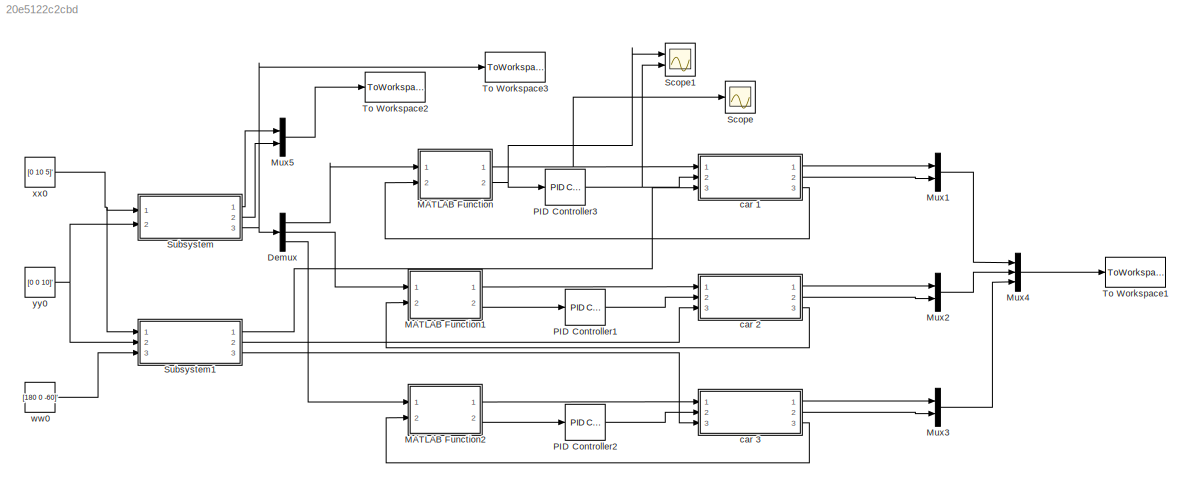
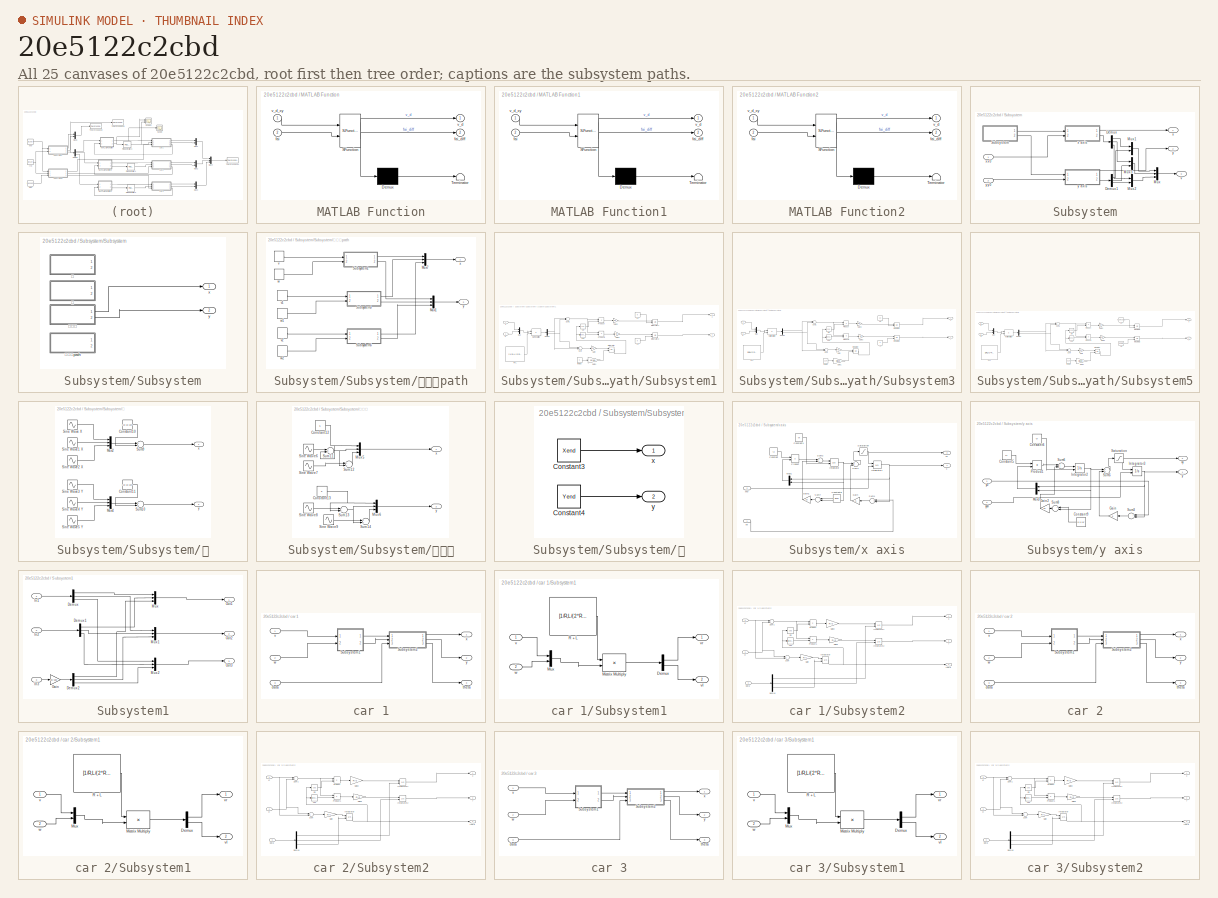
[diagram: thumbnail index - all 25 canvases of the model, root first then tree order]
MODEL slx_20e5122c2cbd
KIND model
CONFIG AbsTol = auto
CONFIG FixedStep = auto
CONFIG InitFcn = clc;\nclear;\nR = 1/2;\nL = 1;\nL1 = [-1 0 1;1 -1 0;0 1 -1];\n\ngammar = 0.75;\nL1 = [L1,gammar*L1];\nVx = [0 0 0]';\nVy = [0 0 0];\nXend = [3 4 5]';\nYend = [3 4 5]';
CONFIG MaxStep = 0.001
CONFIG MinStep = auto
CONFIG RelTol = 1e-3
CONFIG SampleTimeConstraint = Unconstrained
CONFIG Solver = ode45
CONFIG SolverMode = Auto
CONFIG SolverName = ode45
CONFIG StartTime = 0.0
CONFIG StopFcn = hold off\nplot(xx(:,1),xx(:,2),'r',xx(:,3),xx(:,4),'b',xx(:,5),xx(:,6),'g');\nhold on\ngrid on\nplot(ss(:,1),ss(:,4),'k--',ss(:,2),ss(:,5),'c--',ss(:,3),ss(:,6),'m--');\n
CONFIG StopTime = 10.0
BLOCK [Demux] Demux
  DisplayOption = bar
  Outputs = 3
  Ports = [1, 3]
BLOCK [SubSystem] MATLAB Function
  ErrorFcn = Stateflow.Translate.translate
  PermitHierarchicalResolution = ExplicitOnly
  Ports = [2, 2]
  RequestExecContextInheritance = off
  SFBlockType = MATLAB Function
  TreatAsAtomicUnit = on
  Variant = off
BLOCK [Demux] MATLAB Function/ Demux 
  Outputs = 1
  Ports = [1, 1]
BLOCK [S-Function] MATLAB Function/ SFunction 
  EnableBusSupport = on
  FunctionName = sf_sfun
  PortCounts = [2 3]
  Ports = [2, 3]
  SFunctionDeploymentMode = off
  Tag = Stateflow S-Function clustercar8 2
BLOCK [Terminator] MATLAB Function/ Terminator 
BLOCK [Inport] MATLAB Function/fai
  IconDisplay = Port number
  Port = 2
BLOCK [Outport] MATLAB Function/fai_diff
  IconDisplay = Port number
  Port = 2
BLOCK [Outport] MATLAB Function/v_d
  IconDisplay = Port number
BLOCK [Inport] MATLAB Function/v_d_xy
  IconDisplay = Port number
BLOCK [SubSystem] MATLAB Function1
  ErrorFcn = Stateflow.Translate.translate
  PermitHierarchicalResolution = ExplicitOnly
  Ports = [2, 2]
  RequestExecContextInheritance = off
  SFBlockType = MATLAB Function
  TreatAsAtomicUnit = on
  Variant = off
BLOCK [Demux] MATLAB Function1/ Demux 
  Outputs = 1
  Ports = [1, 1]
BLOCK [S-Function] MATLAB Function1/ SFunction 
  EnableBusSupport = on
  FunctionName = sf_sfun
  PortCounts = [2 3]
  Ports = [2, 3]
  SFunctionDeploymentMode = off
  Tag = Stateflow S-Function clustercar8 1
BLOCK [Terminator] MATLAB Function1/ Terminator 
BLOCK [Inport] MATLAB Function1/fai
  IconDisplay = Port number
  Port = 2
BLOCK [Outport] MATLAB Function1/fai_diff
  IconDisplay = Port number
  Port = 2
BLOCK [Outport] MATLAB Function1/v_d
  IconDisplay = Port number
BLOCK [Inport] MATLAB Function1/v_d_xy
  IconDisplay = Port number
BLOCK [SubSystem] MATLAB Function2
  ErrorFcn = Stateflow.Translate.translate
  PermitHierarchicalResolution = ExplicitOnly
  Ports = [2, 2]
  RequestExecContextInheritance = off
  SFBlockType = MATLAB Function
  TreatAsAtomicUnit = on
  Variant = off
BLOCK [Demux] MATLAB Function2/ Demux 
  Outputs = 1
  Ports = [1, 1]
BLOCK [S-Function] MATLAB Function2/ SFunction 
  EnableBusSupport = on
  FunctionName = sf_sfun
  PortCounts = [2 3]
  Ports = [2, 3]
  SFunctionDeploymentMode = off
  Tag = Stateflow S-Function clustercar8 3
BLOCK [Terminator] MATLAB Function2/ Terminator 
BLOCK [Inport] MATLAB Function2/fai
  IconDisplay = Port number
  Port = 2
BLOCK [Outport] MATLAB Function2/fai_diff
  IconDisplay = Port number
  Port = 2
BLOCK [Outport] MATLAB Function2/v_d
  IconDisplay = Port number
BLOCK [Inport] MATLAB Function2/v_d_xy
  IconDisplay = Port number
BLOCK [Mux] Mux1
  DisplayOption = bar
  Inputs = 2
  Ports = [2, 1]
BLOCK [Mux] Mux2
  DisplayOption = bar
  Inputs = 2
  Ports = [2, 1]
BLOCK [Mux] Mux3
  DisplayOption = bar
  Inputs = 2
  Ports = [2, 1]
BLOCK [Mux] Mux4
  DisplayOption = bar
  Inputs = 3
  Ports = [3, 1]
BLOCK [Mux] Mux5
  DisplayOption = bar
  Inputs = 2
  Ports = [2, 1]
BLOCK [Reference] PID Controller1  REF=simulink/Continuous/PID Controller
  Ports = [1, 1]
  SourceBlock = simulink/Continuous/PID Controller
  SourceType = PID 1dof
BLOCK [Reference] PID Controller2  REF=simulink/Continuous/PID Controller
  Ports = [1, 1]
  SourceBlock = simulink/Continuous/PID Controller
  SourceType = PID 1dof
BLOCK [Reference] PID Controller3  REF=simulink/Continuous/PID Controller
  Ports = [1, 1]
  SourceBlock = simulink/Continuous/PID Controller
  SourceType = PID 1dof
BLOCK [Scope] Scope
  Ports = [1]
  ScopeSpecificationString = Simulink.scopes.TimeScopeBlockCfg('CurrentConfiguration', extmgr.ConfigurationSet(extmgr.Configuration('Core','General UI',true),extmgr.Configuration('Core','Source UI',true),extmgr.Configuration('Sources','WiredSimulink',true),extmgr.Configuration('Visuals','Time Domain',true,'SerializedDisplays',{struct('MinYLimReal','-0.05586','MaxYLimReal','0.5027','YLabelReal','','MinYLimMag','0.00000','MaxYL...<+1335ch>
BLOCK [Scope] Scope1
  NumInputPorts = 2
  Ports = [2]
  ScopeSpecificationString = Simulink.scopes.TimeScopeBlockCfg('CurrentConfiguration', extmgr.ConfigurationSet(extmgr.Configuration('Core','General UI',true),extmgr.Configuration('Core','Source UI',true),extmgr.Configuration('Sources','WiredSimulink',true,'DataLoggingVariableName','ScopeData1'),extmgr.Configuration('Visuals','Time Domain',true,'SerializedDisplays',{struct('MinYLimReal','-300.3798','MaxYLimReal','80.18834','YL...<+1479ch>
BLOCK [SubSystem] Subsystem
  Ports = [2, 3]
  RequestExecContextInheritance = off
  Variant = off
BLOCK [Demux] Subsystem/Demux
  DisplayOption = bar
  Outputs = 3
  Ports = [1, 3]
BLOCK [Demux] Subsystem/Demux1
  DisplayOption = bar
  Outputs = 3
  Ports = [1, 3]
BLOCK [Mux] Subsystem/Mux
  DisplayOption = bar
  Inputs = 3
  Ports = [3, 1]
BLOCK [Mux] Subsystem/Mux1
  DisplayOption = bar
  Inputs = 2
  Ports = [2, 1]
BLOCK [Mux] Subsystem/Mux2
  DisplayOption = bar
  Inputs = 2
  Ports = [2, 1]
BLOCK [Mux] Subsystem/Mux3
  DisplayOption = bar
  Inputs = 2
  Ports = [2, 1]
BLOCK [SubSystem] Subsystem/Subsystem
  Ports = [0, 2]
  RequestExecContextInheritance = off
  Variant = off
BLOCK [Outport] Subsystem/Subsystem/x
  IconDisplay = Port number
BLOCK [Outport] Subsystem/Subsystem/y
  IconDisplay = Port number
  Port = 2
BLOCK [SubSystem] Subsystem/Subsystem/三角形path
  Ports = [0, 2]
  RequestExecContextInheritance = off
  Variant = off
BLOCK [Mux] Subsystem/Subsystem/三角形path/Mux1
  DisplayOption = bar
  Inputs = 3
  Ports = [3, 1]
BLOCK [Mux] Subsystem/Subsystem/三角形path/Mux7
  DisplayOption = bar
  Inputs = 3
  Ports = [3, 1]
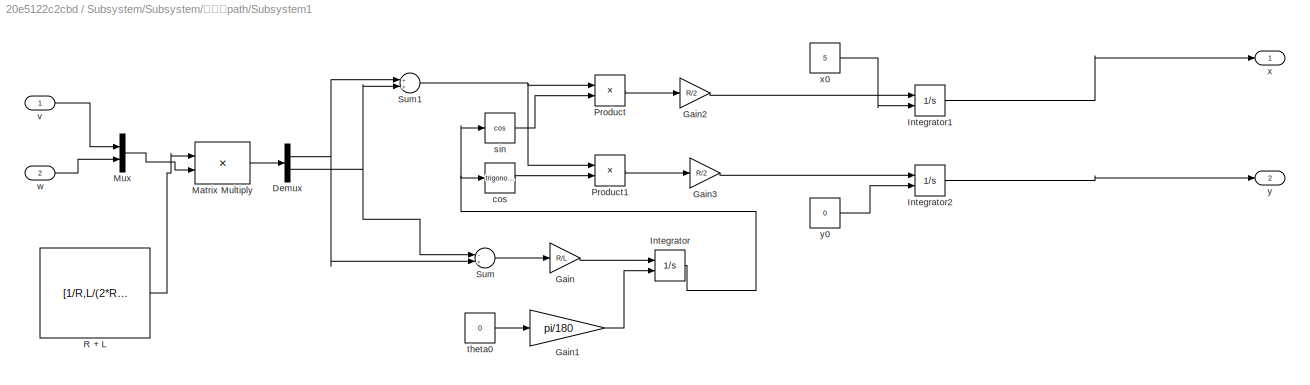
BLOCK [SubSystem] Subsystem/Subsystem/三角形path/Subsystem1
  Ports = [2, 2]
  RequestExecContextInheritance = off
  Variant = off
BLOCK [Demux] Subsystem/Subsystem/三角形path/Subsystem1/Demux
  DisplayOption = bar
  Outputs = 2
  Ports = [1, 2]
BLOCK [Gain] Subsystem/Subsystem/三角形path/Subsystem1/Gain
  Gain = R/L
  OutDataTypeStr = Inherit: Inherit via internal rule
  ParamDataTypeStr = Inherit: Inherit via internal rule
  SaturateOnIntegerOverflow = off
BLOCK [Gain] Subsystem/Subsystem/三角形path/Subsystem1/Gain1
  Gain = pi/180
  OutDataTypeStr = Inherit: Inherit via internal rule
  ParamDataTypeStr = Inherit: Inherit via internal rule
  SaturateOnIntegerOverflow = off
BLOCK [Gain] Subsystem/Subsystem/三角形path/Subsystem1/Gain2
  Gain = R/2
  OutDataTypeStr = Inherit: Inherit via internal rule
  ParamDataTypeStr = Inherit: Inherit via internal rule
  SaturateOnIntegerOverflow = off
BLOCK [Gain] Subsystem/Subsystem/三角形path/Subsystem1/Gain3
  Gain = R/2
  OutDataTypeStr = Inherit: Inherit via internal rule
  ParamDataTypeStr = Inherit: Inherit via internal rule
  SaturateOnIntegerOverflow = off
BLOCK [Integrator] Subsystem/Subsystem/三角形path/Subsystem1/Integrator
  InitialConditionSource = external
  Ports = [2, 1]
BLOCK [Integrator] Subsystem/Subsystem/三角形path/Subsystem1/Integrator1
  InitialConditionSource = external
  Ports = [2, 1]
BLOCK [Integrator] Subsystem/Subsystem/三角形path/Subsystem1/Integrator2
  InitialConditionSource = external
  Ports = [2, 1]
BLOCK [Product] Subsystem/Subsystem/三角形path/Subsystem1/Matrix Multiply
  InputSameDT = off
  Multiplication = Matrix(*)
  OutDataTypeStr = Inherit: Inherit via internal rule
  Ports = [2, 1]
  RndMeth = Floor
  SaturateOnIntegerOverflow = off
BLOCK [Mux] Subsystem/Subsystem/三角形path/Subsystem1/Mux
  DisplayOption = bar
  Inputs = 2
  Ports = [2, 1]
BLOCK [Product] Subsystem/Subsystem/三角形path/Subsystem1/Product
  InputSameDT = off
  OutDataTypeStr = Inherit: Inherit via internal rule
  Ports = [2, 1]
  RndMeth = Floor
  SaturateOnIntegerOverflow = off
BLOCK [Product] Subsystem/Subsystem/三角形path/Subsystem1/Product1
  InputSameDT = off
  OutDataTypeStr = Inherit: Inherit via internal rule
  Ports = [2, 1]
  RndMeth = Floor
  SaturateOnIntegerOverflow = off
BLOCK [Constant] Subsystem/Subsystem/三角形path/Subsystem1/R + L
  Value = [1/R,L/(2*R);1/R,-L/(2*R)]
BLOCK [Sum] Subsystem/Subsystem/三角形path/Subsystem1/Sum
  InputSameDT = off
  Inputs = -+
  OutDataTypeStr = Inherit: Inherit via internal rule
  Ports = [2, 1]
  SaturateOnIntegerOverflow = off
BLOCK [Sum] Subsystem/Subsystem/三角形path/Subsystem1/Sum1
  InputSameDT = off
  OutDataTypeStr = Inherit: Inherit via internal rule
  Ports = [2, 1]
  SaturateOnIntegerOverflow = off
BLOCK [Trigonometry] Subsystem/Subsystem/三角形path/Subsystem1/cos
  Ports = [1, 1]
BLOCK [Trigonometry] Subsystem/Subsystem/三角形path/Subsystem1/sin
  Operator = cos
  Ports = [1, 1]
BLOCK [Constant] Subsystem/Subsystem/三角形path/Subsystem1/theta0
  Value = 0
BLOCK [Inport] Subsystem/Subsystem/三角形path/Subsystem1/v
  IconDisplay = Port number
BLOCK [Inport] Subsystem/Subsystem/三角形path/Subsystem1/w
  IconDisplay = Port number
  Port = 2
BLOCK [Outport] Subsystem/Subsystem/三角形path/Subsystem1/x
  IconDisplay = Port number
BLOCK [Constant] Subsystem/Subsystem/三角形path/Subsystem1/x0
  Value = 5
BLOCK [Outport] Subsystem/Subsystem/三角形path/Subsystem1/y
  IconDisplay = Port number
  Port = 2
BLOCK [Constant] Subsystem/Subsystem/三角形path/Subsystem1/y0
  Value = 0
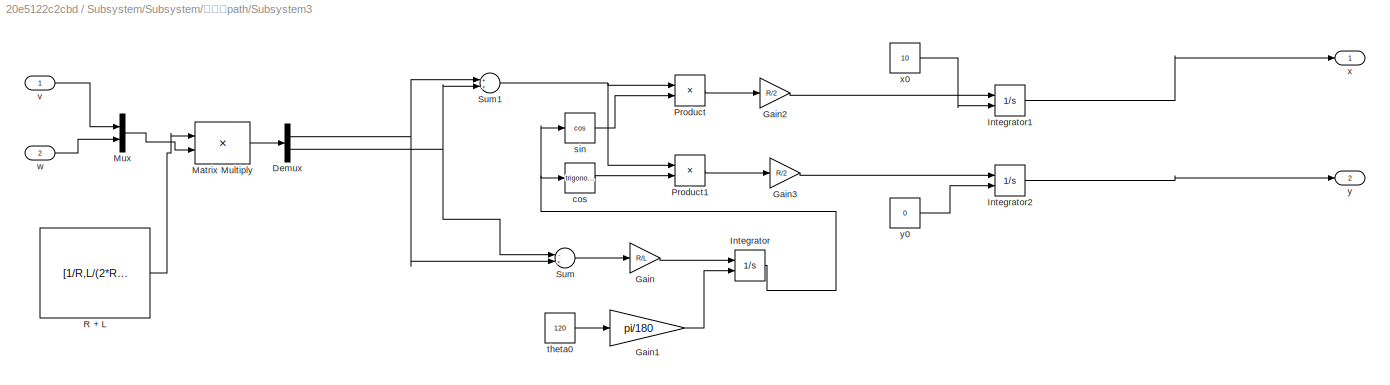
BLOCK [SubSystem] Subsystem/Subsystem/三角形path/Subsystem3
  Ports = [2, 2]
  RequestExecContextInheritance = off
  Variant = off
BLOCK [Demux] Subsystem/Subsystem/三角形path/Subsystem3/Demux
  DisplayOption = bar
  Outputs = 2
  Ports = [1, 2]
BLOCK [Gain] Subsystem/Subsystem/三角形path/Subsystem3/Gain
  Gain = R/L
  OutDataTypeStr = Inherit: Inherit via internal rule
  ParamDataTypeStr = Inherit: Inherit via internal rule
  SaturateOnIntegerOverflow = off
BLOCK [Gain] Subsystem/Subsystem/三角形path/Subsystem3/Gain1
  Gain = pi/180
  OutDataTypeStr = Inherit: Inherit via internal rule
  ParamDataTypeStr = Inherit: Inherit via internal rule
  SaturateOnIntegerOverflow = off
BLOCK [Gain] Subsystem/Subsystem/三角形path/Subsystem3/Gain2
  Gain = R/2
  OutDataTypeStr = Inherit: Inherit via internal rule
  ParamDataTypeStr = Inherit: Inherit via internal rule
  SaturateOnIntegerOverflow = off
BLOCK [Gain] Subsystem/Subsystem/三角形path/Subsystem3/Gain3
  Gain = R/2
  OutDataTypeStr = Inherit: Inherit via internal rule
  ParamDataTypeStr = Inherit: Inherit via internal rule
  SaturateOnIntegerOverflow = off
BLOCK [Integrator] Subsystem/Subsystem/三角形path/Subsystem3/Integrator
  InitialConditionSource = external
  Ports = [2, 1]
BLOCK [Integrator] Subsystem/Subsystem/三角形path/Subsystem3/Integrator1
  InitialConditionSource = external
  Ports = [2, 1]
BLOCK [Integrator] Subsystem/Subsystem/三角形path/Subsystem3/Integrator2
  InitialConditionSource = external
  Ports = [2, 1]
BLOCK [Product] Subsystem/Subsystem/三角形path/Subsystem3/Matrix Multiply
  InputSameDT = off
  Multiplication = Matrix(*)
  OutDataTypeStr = Inherit: Inherit via internal rule
  Ports = [2, 1]
  RndMeth = Floor
  SaturateOnIntegerOverflow = off
BLOCK [Mux] Subsystem/Subsystem/三角形path/Subsystem3/Mux
  DisplayOption = bar
  Inputs = 2
  Ports = [2, 1]
BLOCK [Product] Subsystem/Subsystem/三角形path/Subsystem3/Product
  InputSameDT = off
  OutDataTypeStr = Inherit: Inherit via internal rule
  Ports = [2, 1]
  RndMeth = Floor
  SaturateOnIntegerOverflow = off
BLOCK [Product] Subsystem/Subsystem/三角形path/Subsystem3/Product1
  InputSameDT = off
  OutDataTypeStr = Inherit: Inherit via internal rule
  Ports = [2, 1]
  RndMeth = Floor
  SaturateOnIntegerOverflow = off
BLOCK [Constant] Subsystem/Subsystem/三角形path/Subsystem3/R + L
  Value = [1/R,L/(2*R);1/R,-L/(2*R)]
BLOCK [Sum] Subsystem/Subsystem/三角形path/Subsystem3/Sum
  InputSameDT = off
  Inputs = -+
  OutDataTypeStr = Inherit: Inherit via internal rule
  Ports = [2, 1]
  SaturateOnIntegerOverflow = off
BLOCK [Sum] Subsystem/Subsystem/三角形path/Subsystem3/Sum1
  InputSameDT = off
  OutDataTypeStr = Inherit: Inherit via internal rule
  Ports = [2, 1]
  SaturateOnIntegerOverflow = off
BLOCK [Trigonometry] Subsystem/Subsystem/三角形path/Subsystem3/cos
  Ports = [1, 1]
BLOCK [Trigonometry] Subsystem/Subsystem/三角形path/Subsystem3/sin
  Operator = cos
  Ports = [1, 1]
BLOCK [Constant] Subsystem/Subsystem/三角形path/Subsystem3/theta0
  Value = 120
BLOCK [Inport] Subsystem/Subsystem/三角形path/Subsystem3/v
  IconDisplay = Port number
BLOCK [Inport] Subsystem/Subsystem/三角形path/Subsystem3/w
  IconDisplay = Port number
  Port = 2
BLOCK [Outport] Subsystem/Subsystem/三角形path/Subsystem3/x
  IconDisplay = Port number
BLOCK [Constant] Subsystem/Subsystem/三角形path/Subsystem3/x0
  Value = 10
BLOCK [Outport] Subsystem/Subsystem/三角形path/Subsystem3/y
  IconDisplay = Port number
  Port = 2
BLOCK [Constant] Subsystem/Subsystem/三角形path/Subsystem3/y0
  Value = 0
BLOCK [SubSystem] Subsystem/Subsystem/三角形path/Subsystem5
  Ports = [2, 2]
  RequestExecContextInheritance = off
  Variant = off
BLOCK [Demux] Subsystem/Subsystem/三角形path/Subsystem5/Demux
  DisplayOption = bar
  Outputs = 2
  Ports = [1, 2]
BLOCK [Gain] Subsystem/Subsystem/三角形path/Subsystem5/Gain
  Gain = R/L
  OutDataTypeStr = Inherit: Inherit via internal rule
  ParamDataTypeStr = Inherit: Inherit via internal rule
  SaturateOnIntegerOverflow = off
BLOCK [Gain] Subsystem/Subsystem/三角形path/Subsystem5/Gain1
  Gain = pi/180
  OutDataTypeStr = Inherit: Inherit via internal rule
  ParamDataTypeStr = Inherit: Inherit via internal rule
  SaturateOnIntegerOverflow = off
BLOCK [Gain] Subsystem/Subsystem/三角形path/Subsystem5/Gain2
  Gain = R/2
  OutDataTypeStr = Inherit: Inherit via internal rule
  ParamDataTypeStr = Inherit: Inherit via internal rule
  SaturateOnIntegerOverflow = off
BLOCK [Gain] Subsystem/Subsystem/三角形path/Subsystem5/Gain3
  Gain = R/2
  OutDataTypeStr = Inherit: Inherit via internal rule
  ParamDataTypeStr = Inherit: Inherit via internal rule
  SaturateOnIntegerOverflow = off
BLOCK [Integrator] Subsystem/Subsystem/三角形path/Subsystem5/Integrator
  InitialConditionSource = external
  Ports = [2, 1]
BLOCK [Integrator] Subsystem/Subsystem/三角形path/Subsystem5/Integrator1
  InitialConditionSource = external
  Ports = [2, 1]
BLOCK [Integrator] Subsystem/Subsystem/三角形path/Subsystem5/Integrator2
  InitialConditionSource = external
  Ports = [2, 1]
BLOCK [Product] Subsystem/Subsystem/三角形path/Subsystem5/Matrix Multiply
  InputSameDT = off
  Multiplication = Matrix(*)
  OutDataTypeStr = Inherit: Inherit via internal rule
  Ports = [2, 1]
  RndMeth = Floor
  SaturateOnIntegerOverflow = off
BLOCK [Mux] Subsystem/Subsystem/三角形path/Subsystem5/Mux
  DisplayOption = bar
  Inputs = 2
  Ports = [2, 1]
BLOCK [Product] Subsystem/Subsystem/三角形path/Subsystem5/Product
  InputSameDT = off
  OutDataTypeStr = Inherit: Inherit via internal rule
  Ports = [2, 1]
  RndMeth = Floor
  SaturateOnIntegerOverflow = off
BLOCK [Product] Subsystem/Subsystem/三角形path/Subsystem5/Product1
  InputSameDT = off
  OutDataTypeStr = Inherit: Inherit via internal rule
  Ports = [2, 1]
  RndMeth = Floor
  SaturateOnIntegerOverflow = off
BLOCK [Constant] Subsystem/Subsystem/三角形path/Subsystem5/R + L
  Value = [1/R,L/(2*R);1/R,-L/(2*R)]
BLOCK [Sum] Subsystem/Subsystem/三角形path/Subsystem5/Sum
  InputSameDT = off
  Inputs = -+
  OutDataTypeStr = Inherit: Inherit via internal rule
  Ports = [2, 1]
  SaturateOnIntegerOverflow = off
BLOCK [Sum] Subsystem/Subsystem/三角形path/Subsystem5/Sum1
  InputSameDT = off
  OutDataTypeStr = Inherit: Inherit via internal rule
  Ports = [2, 1]
  SaturateOnIntegerOverflow = off
BLOCK [Trigonometry] Subsystem/Subsystem/三角形path/Subsystem5/cos
  Ports = [1, 1]
BLOCK [Trigonometry] Subsystem/Subsystem/三角形path/Subsystem5/sin
  Operator = cos
  Ports = [1, 1]
BLOCK [Constant] Subsystem/Subsystem/三角形path/Subsystem5/theta0
  Value = -120
BLOCK [Inport] Subsystem/Subsystem/三角形path/Subsystem5/v
  IconDisplay = Port number
BLOCK [Inport] Subsystem/Subsystem/三角形path/Subsystem5/w
  IconDisplay = Port number
  Port = 2
BLOCK [Outport] Subsystem/Subsystem/三角形path/Subsystem5/x
  IconDisplay = Port number
BLOCK [Constant] Subsystem/Subsystem/三角形path/Subsystem5/x0
  Value = 5+5*cos(pi/3)
BLOCK [Outport] Subsystem/Subsystem/三角形path/Subsystem5/y
  IconDisplay = Port number
  Port = 2
BLOCK [Constant] Subsystem/Subsystem/三角形path/Subsystem5/y0
  Value = 5*sin(pi/3)
BLOCK [DiscretePulseGenerator] Subsystem/Subsystem/三角形path/v
  Amplitude = 5
  Ports = [0, 1]
  PulseType = Time based
  PulseWidth = 50
BLOCK [DiscretePulseGenerator] Subsystem/Subsystem/三角形path/v1
  Amplitude = 5
  Ports = [0, 1]
  PulseType = Time based
  PulseWidth = 50
BLOCK [DiscretePulseGenerator] Subsystem/Subsystem/三角形path/v2
  Amplitude = 5
  Ports = [0, 1]
  PulseType = Time based
  PulseWidth = 50
BLOCK [DiscretePulseGenerator] Subsystem/Subsystem/三角形path/w
  Amplitude = 2*pi/3
  PhaseDelay = 1
  Ports = [0, 1]
  PulseType = Time based
  PulseWidth = 50
BLOCK [DiscretePulseGenerator] Subsystem/Subsystem/三角形path/w1
  Amplitude = 2*pi/3
  PhaseDelay = 1
  Ports = [0, 1]
  PulseType = Time based
  PulseWidth = 50
BLOCK [DiscretePulseGenerator] Subsystem/Subsystem/三角形path/w2
  Amplitude = 2*pi/3
  PhaseDelay = 1
  Ports = [0, 1]
  PulseType = Time based
  PulseWidth = 50
BLOCK [Outport] Subsystem/Subsystem/三角形path/x
  IconDisplay = Port number
BLOCK [Outport] Subsystem/Subsystem/三角形path/y
  IconDisplay = Port number
  Port = 2
BLOCK [SubSystem] Subsystem/Subsystem/圆
  Ports = [0, 2]
  RequestExecContextInheritance = off
  Variant = off
BLOCK [Constant] Subsystem/Subsystem/圆/Constant10
  Value = [10 10 10]'
BLOCK [Constant] Subsystem/Subsystem/圆/Constant11
  Value = [10 10 10]'
BLOCK [Mux] Subsystem/Subsystem/圆/Mux2
  DisplayOption = bar
  Inputs = 3
  Ports = [3, 1]
BLOCK [Mux] Subsystem/Subsystem/圆/Mux4
  DisplayOption = bar
  Inputs = 3
  Ports = [3, 1]
BLOCK [Sin] Subsystem/Subsystem/圆/Sine Wave X
  Amplitude = 2
  Ports = [0, 1]
  SampleTime = 0
BLOCK [Sin] Subsystem/Subsystem/圆/Sine Wave1 X
  Amplitude = 2
  Phase = 120*pi/180
  Ports = [0, 1]
  SampleTime = 0
BLOCK [Sin] Subsystem/Subsystem/圆/Sine Wave2 X
  Amplitude = 2
  Phase = 240*pi/180
  Ports = [0, 1]
  SampleTime = 0
BLOCK [Sin] Subsystem/Subsystem/圆/Sine Wave3 Y
  Amplitude = 2
  Phase = 90*pi/180
  Ports = [0, 1]
  SampleTime = 0
BLOCK [Sin] Subsystem/Subsystem/圆/Sine Wave4 Y
  Amplitude = 2
  Phase = 210*pi/180
  Ports = [0, 1]
  SampleTime = 0
BLOCK [Sin] Subsystem/Subsystem/圆/Sine Wave5 Y
  Amplitude = 2
  Phase = 330*pi/180
  Ports = [0, 1]
  SampleTime = 0
BLOCK [Sum] Subsystem/Subsystem/圆/Sum10
  InputSameDT = off
  OutDataTypeStr = Inherit: Inherit via internal rule
  Ports = [2, 1]
  SaturateOnIntegerOverflow = off
BLOCK [Sum] Subsystem/Subsystem/圆/Sum9
  InputSameDT = off
  OutDataTypeStr = Inherit: Inherit via internal rule
  Ports = [2, 1]
  SaturateOnIntegerOverflow = off
BLOCK [Outport] Subsystem/Subsystem/圆/x
  IconDisplay = Port number
BLOCK [Outport] Subsystem/Subsystem/圆/y
  IconDisplay = Port number
  Port = 2
BLOCK [SubSystem] Subsystem/Subsystem/日地月
  Ports = [0, 2]
  RequestExecContextInheritance = off
  Variant = off
BLOCK [Constant] Subsystem/Subsystem/日地月/Constant12
  Value = 5
BLOCK [Constant] Subsystem/Subsystem/日地月/Constant13
  Value = 5
BLOCK [Mux] Subsystem/Subsystem/日地月/Mux5
  DisplayOption = bar
  Inputs = 3
  Ports = [3, 1]
BLOCK [Mux] Subsystem/Subsystem/日地月/Mux6
  DisplayOption = bar
  Inputs = 3
  Ports = [3, 1]
BLOCK [Sin] Subsystem/Subsystem/日地月/Sine Wave6
  Amplitude = 2
  Ports = [0, 1]
  SampleTime = 0
BLOCK [Sin] Subsystem/Subsystem/日地月/Sine Wave7
  Amplitude = 0.5
  Frequency = 20
  Ports = [0, 1]
  SampleTime = 0
BLOCK [Sin] Subsystem/Subsystem/日地月/Sine Wave8
  Amplitude = 2
  Phase = 90*pi/180
  Ports = [0, 1]
  SampleTime = 0
BLOCK [Sin] Subsystem/Subsystem/日地月/Sine Wave9
  Amplitude = 0.5
  Frequency = 20
  Phase = 90*pi/180
  Ports = [0, 1]
  SampleTime = 0
BLOCK [Sum] Subsystem/Subsystem/日地月/Sum11
  InputSameDT = off
  OutDataTypeStr = Inherit: Inherit via internal rule
  Ports = [2, 1]
  SaturateOnIntegerOverflow = off
BLOCK [Sum] Subsystem/Subsystem/日地月/Sum12
  InputSameDT = off
  OutDataTypeStr = Inherit: Inherit via internal rule
  Ports = [2, 1]
  SaturateOnIntegerOverflow = off
BLOCK [Sum] Subsystem/Subsystem/日地月/Sum13
  InputSameDT = off
  OutDataTypeStr = Inherit: Inherit via internal rule
  Ports = [2, 1]
  SaturateOnIntegerOverflow = off
BLOCK [Sum] Subsystem/Subsystem/日地月/Sum14
  InputSameDT = off
  OutDataTypeStr = Inherit: Inherit via internal rule
  Ports = [2, 1]
  SaturateOnIntegerOverflow = off
BLOCK [Outport] Subsystem/Subsystem/日地月/x
  IconDisplay = Port number
BLOCK [Outport] Subsystem/Subsystem/日地月/y
  IconDisplay = Port number
  Port = 2
BLOCK [SubSystem] Subsystem/Subsystem/点
  Ports = [0, 2]
  RequestExecContextInheritance = off
  Variant = off
BLOCK [Constant] Subsystem/Subsystem/点/Constant3
  Value = Xend
BLOCK [Constant] Subsystem/Subsystem/点/Constant4
  Value = Yend
BLOCK [Outport] Subsystem/Subsystem/点/x
  IconDisplay = Port number
BLOCK [Outport] Subsystem/Subsystem/点/y
  IconDisplay = Port number
  Port = 2
BLOCK [Outport] Subsystem/v
  IconDisplay = Port number
  Port = 3
BLOCK [Outport] Subsystem/x
  IconDisplay = Port number
BLOCK [SubSystem] Subsystem/x axis
  Ports = [2, 2]
  RequestExecContextInheritance = off
  Variant = off
BLOCK [Constant] Subsystem/x axis/Constant
  Value = L1
  VectorParams1D = off
BLOCK [Constant] Subsystem/x axis/Constant1
  Value = Vx
BLOCK [Constant] Subsystem/x axis/Constant8
  Value = [0 0 0]'
BLOCK [Gain] Subsystem/x axis/Gain
  Gain = 5
  OutDataTypeStr = Inherit: Inherit via internal rule
  ParamDataTypeStr = Inherit: Inherit via internal rule
  SaturateOnIntegerOverflow = off
BLOCK [Gain] Subsystem/x axis/Gain1
  Gain = 10
  OutDataTypeStr = Inherit: Inherit via internal rule
  ParamDataTypeStr = Inherit: Inherit via internal rule
  SaturateOnIntegerOverflow = off
BLOCK [Integrator] Subsystem/x axis/Integrator
  InitialConditionSource = external
  Ports = [2, 1]
BLOCK [Integrator] Subsystem/x axis/Integrator1
  InitialConditionSource = external
  Ports = [2, 1]
BLOCK [Mux] Subsystem/x axis/Mux1
  DisplayOption = bar
  Inputs = 2
  Ports = [2, 1]
BLOCK [Product] Subsystem/x axis/Product
  InputSameDT = off
  Multiplication = Matrix(*)
  OutDataTypeStr = Inherit: Inherit via internal rule
  Ports = [2, 1]
  RndMeth = Floor
  SaturateOnIntegerOverflow = off
BLOCK [Saturate] Subsystem/x axis/Saturation
  InputPortMap = u0
  LowerLimit = -5
  Ports = [1, 1]
  UpperLimit = 5
BLOCK [Sum] Subsystem/x axis/Sum1
  InputSameDT = off
  Inputs = +-
  OutDataTypeStr = Inherit: Inherit via internal rule
  Ports = [2, 1]
  SaturateOnIntegerOverflow = off
BLOCK [Sum] Subsystem/x axis/Sum2
  InputSameDT = off
  OutDataTypeStr = Inherit: Inherit via internal rule
  Ports = [2, 1]
  SaturateOnIntegerOverflow = off
BLOCK [Sum] Subsystem/x axis/Sum4
  InputSameDT = off
  OutDataTypeStr = Inherit: Inherit via internal rule
  Ports = [2, 1]
  SaturateOnIntegerOverflow = off
BLOCK [Sum] Subsystem/x axis/Sum7
  InputSameDT = off
  Inputs = +-
  OutDataTypeStr = Inherit: Inherit via internal rule
  Ports = [2, 1]
  SaturateOnIntegerOverflow = off
BLOCK [Outport] Subsystem/x axis/vx
  IconDisplay = Port number
  Port = 2
BLOCK [Outport] Subsystem/x axis/x
  IconDisplay = Port number
BLOCK [Inport] Subsystem/x axis/x0
  IconDisplay = Port number
BLOCK [Inport] Subsystem/x axis/xx0
  IconDisplay = Port number
  Port = 2
BLOCK [Inport] Subsystem/xx0
  IconDisplay = Port number
BLOCK [Outport] Subsystem/y
  IconDisplay = Port number
  Port = 2
BLOCK [SubSystem] Subsystem/y axis
  Ports = [2, 2]
  RequestExecContextInheritance = off
  Variant = off
BLOCK [Constant] Subsystem/y axis/Constant5
  Value = L1
  VectorParams1D = off
BLOCK [Constant] Subsystem/y axis/Constant6
  Value = Vy
BLOCK [Constant] Subsystem/y axis/Constant9
  Value = [0 0 0]'
BLOCK [Gain] Subsystem/y axis/Gain
  Gain = 5
  OutDataTypeStr = Inherit: Inherit via internal rule
  ParamDataTypeStr = Inherit: Inherit via internal rule
  SaturateOnIntegerOverflow = off
BLOCK [Gain] Subsystem/y axis/Gain2
  Gain = 10
  OutDataTypeStr = Inherit: Inherit via internal rule
  ParamDataTypeStr = Inherit: Inherit via internal rule
  SaturateOnIntegerOverflow = off
BLOCK [Integrator] Subsystem/y axis/Integrator2
  InitialConditionSource = external
  Ports = [2, 1]
BLOCK [Integrator] Subsystem/y axis/Integrator3
  InitialConditionSource = external
  Ports = [2, 1]
BLOCK [Mux] Subsystem/y axis/Mux3
  DisplayOption = bar
  Inputs = 2
  Ports = [2, 1]
BLOCK [Product] Subsystem/y axis/Product1
  InputSameDT = off
  Multiplication = Matrix(*)
  OutDataTypeStr = Inherit: Inherit via internal rule
  Ports = [2, 1]
  RndMeth = Floor
  SaturateOnIntegerOverflow = off
BLOCK [Saturate] Subsystem/y axis/Saturation
  InputPortMap = u0
  LowerLimit = -5
  Ports = [1, 1]
  UpperLimit = 5
BLOCK [Sum] Subsystem/y axis/Sum3
  InputSameDT = off
  Inputs = +-
  OutDataTypeStr = Inherit: Inherit via internal rule
  Ports = [2, 1]
  SaturateOnIntegerOverflow = off
BLOCK [Sum] Subsystem/y axis/Sum5
  InputSameDT = off
  OutDataTypeStr = Inherit: Inherit via internal rule
  Ports = [2, 1]
  SaturateOnIntegerOverflow = off
BLOCK [Sum] Subsystem/y axis/Sum6
  InputSameDT = off
  OutDataTypeStr = Inherit: Inherit via internal rule
  Ports = [2, 1]
  SaturateOnIntegerOverflow = off
BLOCK [Sum] Subsystem/y axis/Sum8
  InputSameDT = off
  Inputs = +-
  OutDataTypeStr = Inherit: Inherit via internal rule
  Ports = [2, 1]
  SaturateOnIntegerOverflow = off
BLOCK [Outport] Subsystem/y axis/vy
  IconDisplay = Port number
  Port = 2
BLOCK [Outport] Subsystem/y axis/y
  IconDisplay = Port number
BLOCK [Inport] Subsystem/y axis/y0
  IconDisplay = Port number
BLOCK [Inport] Subsystem/y axis/yy0
  IconDisplay = Port number
  Port = 2
BLOCK [Inport] Subsystem/yy0
  IconDisplay = Port number
  Port = 2
BLOCK [SubSystem] Subsystem1
  Ports = [3, 3]
  RequestExecContextInheritance = off
  Variant = off
BLOCK [Demux] Subsystem1/Demux
  DisplayOption = bar
  Outputs = 3
  Ports = [1, 3]
BLOCK [Demux] Subsystem1/Demux1
  DisplayOption = bar
  Outputs = 3
  Ports = [1, 3]
BLOCK [Demux] Subsystem1/Demux2
  DisplayOption = bar
  Outputs = 3
  Ports = [1, 3]
BLOCK [Gain] Subsystem1/Gain
  Gain = pi/180
  OutDataTypeStr = Inherit: Inherit via internal rule
  ParamDataTypeStr = Inherit: Inherit via internal rule
  SaturateOnIntegerOverflow = off
BLOCK [Inport] Subsystem1/In1
  IconDisplay = Port number
BLOCK [Inport] Subsystem1/In2
  IconDisplay = Port number
  Port = 2
BLOCK [Inport] Subsystem1/In3
  IconDisplay = Port number
  Port = 3
BLOCK [Mux] Subsystem1/Mux
  DisplayOption = bar
  Inputs = 3
  Ports = [3, 1]
BLOCK [Mux] Subsystem1/Mux1
  DisplayOption = bar
  Inputs = 3
  Ports = [3, 1]
BLOCK [Mux] Subsystem1/Mux2
  DisplayOption = bar
  Inputs = 3
  Ports = [3, 1]
BLOCK [Outport] Subsystem1/Out1
  IconDisplay = Port number
BLOCK [Outport] Subsystem1/Out2
  IconDisplay = Port number
  Port = 2
BLOCK [Outport] Subsystem1/Out3
  IconDisplay = Port number
  Port = 3
BLOCK [ToWorkspace] To Workspace1
  FixptAsFi = on
  MaxDataPoints = inf
  Ports = [1]
  SampleTime = -1
  Save2DSignal = 3-D array (concatenate along third dimension)
  VariableName = xx
BLOCK [ToWorkspace] To Workspace2
  FixptAsFi = on
  MaxDataPoints = inf
  Ports = [1]
  SampleTime = -1
  Save2DSignal = 3-D array (concatenate along third dimension)
  VariableName = ss
BLOCK [ToWorkspace] To Workspace3
  FixptAsFi = on
  MaxDataPoints = inf
  Ports = [1]
  SampleTime = -1
  Save2DSignal = 3-D array (concatenate along third dimension)
  VariableName = v
BLOCK [SubSystem] car 1
  Ports = [3, 3]
  RequestExecContextInheritance = off
  Variant = off
BLOCK [SubSystem] car 1/Subsystem1
  Ports = [2, 2]
  RequestExecContextInheritance = off
  Variant = off
BLOCK [Demux] car 1/Subsystem1/Demux
  DisplayOption = bar
  Outputs = 2
  Ports = [1, 2]
BLOCK [Product] car 1/Subsystem1/Matrix Multiply
  InputSameDT = off
  Multiplication = Matrix(*)
  OutDataTypeStr = Inherit: Inherit via internal rule
  Ports = [2, 1]
  RndMeth = Floor
  SaturateOnIntegerOverflow = off
BLOCK [Mux] car 1/Subsystem1/Mux
  DisplayOption = bar
  Inputs = 2
  Ports = [2, 1]
BLOCK [Constant] car 1/Subsystem1/R + L
  Value = [1/R,L/(2*R);1/R,-L/(2*R)]
BLOCK [Inport] car 1/Subsystem1/v
  IconDisplay = Port number
BLOCK [Outport] car 1/Subsystem1/vl
  IconDisplay = Port number
  Port = 2
BLOCK [Outport] car 1/Subsystem1/vr
  IconDisplay = Port number
BLOCK [Inport] car 1/Subsystem1/w
  IconDisplay = Port number
  Port = 2
BLOCK [SubSystem] car 1/Subsystem2
  Ports = [3, 3]
  RequestExecContextInheritance = off
  Variant = off
BLOCK [Demux] car 1/Subsystem2/Demux
  DisplayOption = bar
  Outputs = 3
  Ports = [1, 3]
BLOCK [Gain] car 1/Subsystem2/Gain
  Gain = R/L
  OutDataTypeStr = Inherit: Inherit via internal rule
  ParamDataTypeStr = Inherit: Inherit via internal rule
  SaturateOnIntegerOverflow = off
BLOCK [Gain] car 1/Subsystem2/Gain2
  Gain = R/2
  OutDataTypeStr = Inherit: Inherit via internal rule
  ParamDataTypeStr = Inherit: Inherit via internal rule
  SaturateOnIntegerOverflow = off
BLOCK [Gain] car 1/Subsystem2/Gain3
  Gain = R/2
  OutDataTypeStr = Inherit: Inherit via internal rule
  ParamDataTypeStr = Inherit: Inherit via internal rule
  SaturateOnIntegerOverflow = off
BLOCK [Integrator] car 1/Subsystem2/Integrator
  InitialConditionSource = external
  Ports = [2, 1]
BLOCK [Integrator] car 1/Subsystem2/Integrator1
  InitialConditionSource = external
  Ports = [2, 1]
BLOCK [Integrator] car 1/Subsystem2/Integrator2
  InitialConditionSource = external
  Ports = [2, 1]
BLOCK [Product] car 1/Subsystem2/Product
  InputSameDT = off
  OutDataTypeStr = Inherit: Inherit via internal rule
  Ports = [2, 1]
  RndMeth = Floor
  SaturateOnIntegerOverflow = off
BLOCK [Product] car 1/Subsystem2/Product1
  InputSameDT = off
  OutDataTypeStr = Inherit: Inherit via internal rule
  Ports = [2, 1]
  RndMeth = Floor
  SaturateOnIntegerOverflow = off
BLOCK [Sum] car 1/Subsystem2/Sum
  InputSameDT = off
  Inputs = -+
  OutDataTypeStr = Inherit: Inherit via internal rule
  Ports = [2, 1]
  SaturateOnIntegerOverflow = off
BLOCK [Sum] car 1/Subsystem2/Sum1
  InputSameDT = off
  OutDataTypeStr = Inherit: Inherit via internal rule
  Ports = [2, 1]
  SaturateOnIntegerOverflow = off
BLOCK [Trigonometry] car 1/Subsystem2/cos
  Ports = [1, 1]
BLOCK [Inport] car 1/Subsystem2/data
  IconDisplay = Port number
  Port = 3
BLOCK [Trigonometry] car 1/Subsystem2/sin
  Operator = cos
  Ports = [1, 1]
BLOCK [Outport] car 1/Subsystem2/theta
  IconDisplay = Port number
  Port = 3
BLOCK [Inport] car 1/Subsystem2/vl 
  IconDisplay = Port number
  Port = 2
BLOCK [Inport] car 1/Subsystem2/vr 
  IconDisplay = Port number
BLOCK [Outport] car 1/Subsystem2/x
  IconDisplay = Port number
BLOCK [Outport] car 1/Subsystem2/y
  IconDisplay = Port number
  Port = 2
BLOCK [Inport] car 1/data
  IconDisplay = Port number
  Port = 3
BLOCK [Outport] car 1/theta
  IconDisplay = Port number
  Port = 3
BLOCK [Inport] car 1/v
  IconDisplay = Port number
BLOCK [Inport] car 1/w
  IconDisplay = Port number
  Port = 2
BLOCK [Outport] car 1/x
  IconDisplay = Port number
BLOCK [Outport] car 1/y
  IconDisplay = Port number
  Port = 2
BLOCK [SubSystem] car 2
  Ports = [3, 3]
  RequestExecContextInheritance = off
  Variant = off
BLOCK [SubSystem] car 2/Subsystem1
  Ports = [2, 2]
  RequestExecContextInheritance = off
  Variant = off
BLOCK [Demux] car 2/Subsystem1/Demux
  DisplayOption = bar
  Outputs = 2
  Ports = [1, 2]
BLOCK [Product] car 2/Subsystem1/Matrix Multiply
  InputSameDT = off
  Multiplication = Matrix(*)
  OutDataTypeStr = Inherit: Inherit via internal rule
  Ports = [2, 1]
  RndMeth = Floor
  SaturateOnIntegerOverflow = off
BLOCK [Mux] car 2/Subsystem1/Mux
  DisplayOption = bar
  Inputs = 2
  Ports = [2, 1]
BLOCK [Constant] car 2/Subsystem1/R + L
  Value = [1/R,L/(2*R);1/R,-L/(2*R)]
BLOCK [Inport] car 2/Subsystem1/v
  IconDisplay = Port number
BLOCK [Outport] car 2/Subsystem1/vl
  IconDisplay = Port number
  Port = 2
BLOCK [Outport] car 2/Subsystem1/vr
  IconDisplay = Port number
BLOCK [Inport] car 2/Subsystem1/w
  IconDisplay = Port number
  Port = 2
BLOCK [SubSystem] car 2/Subsystem2
  Ports = [3, 3]
  RequestExecContextInheritance = off
  Variant = off
BLOCK [Demux] car 2/Subsystem2/Demux
  DisplayOption = bar
  Outputs = 3
  Ports = [1, 3]
BLOCK [Gain] car 2/Subsystem2/Gain
  Gain = R/L
  OutDataTypeStr = Inherit: Inherit via internal rule
  ParamDataTypeStr = Inherit: Inherit via internal rule
  SaturateOnIntegerOverflow = off
BLOCK [Gain] car 2/Subsystem2/Gain2
  Gain = R/2
  OutDataTypeStr = Inherit: Inherit via internal rule
  ParamDataTypeStr = Inherit: Inherit via internal rule
  SaturateOnIntegerOverflow = off
BLOCK [Gain] car 2/Subsystem2/Gain3
  Gain = R/2
  OutDataTypeStr = Inherit: Inherit via internal rule
  ParamDataTypeStr = Inherit: Inherit via internal rule
  SaturateOnIntegerOverflow = off
BLOCK [Integrator] car 2/Subsystem2/Integrator
  InitialConditionSource = external
  Ports = [2, 1]
BLOCK [Integrator] car 2/Subsystem2/Integrator1
  InitialConditionSource = external
  Ports = [2, 1]
BLOCK [Integrator] car 2/Subsystem2/Integrator2
  InitialConditionSource = external
  Ports = [2, 1]
BLOCK [Product] car 2/Subsystem2/Product
  InputSameDT = off
  OutDataTypeStr = Inherit: Inherit via internal rule
  Ports = [2, 1]
  RndMeth = Floor
  SaturateOnIntegerOverflow = off
BLOCK [Product] car 2/Subsystem2/Product1
  InputSameDT = off
  OutDataTypeStr = Inherit: Inherit via internal rule
  Ports = [2, 1]
  RndMeth = Floor
  SaturateOnIntegerOverflow = off
BLOCK [Sum] car 2/Subsystem2/Sum
  InputSameDT = off
  Inputs = -+
  OutDataTypeStr = Inherit: Inherit via internal rule
  Ports = [2, 1]
  SaturateOnIntegerOverflow = off
BLOCK [Sum] car 2/Subsystem2/Sum1
  InputSameDT = off
  OutDataTypeStr = Inherit: Inherit via internal rule
  Ports = [2, 1]
  SaturateOnIntegerOverflow = off
BLOCK [Trigonometry] car 2/Subsystem2/cos
  Ports = [1, 1]
BLOCK [Inport] car 2/Subsystem2/data
  IconDisplay = Port number
  Port = 3
BLOCK [Trigonometry] car 2/Subsystem2/sin
  Operator = cos
  Ports = [1, 1]
BLOCK [Outport] car 2/Subsystem2/theta
  IconDisplay = Port number
  Port = 3
BLOCK [Inport] car 2/Subsystem2/vl 
  IconDisplay = Port number
  Port = 2
BLOCK [Inport] car 2/Subsystem2/vr 
  IconDisplay = Port number
BLOCK [Outport] car 2/Subsystem2/x
  IconDisplay = Port number
BLOCK [Outport] car 2/Subsystem2/y
  IconDisplay = Port number
  Port = 2
BLOCK [Inport] car 2/data
  IconDisplay = Port number
  Port = 3
BLOCK [Outport] car 2/theta
  IconDisplay = Port number
  Port = 3
BLOCK [Inport] car 2/v
  IconDisplay = Port number
BLOCK [Inport] car 2/w
  IconDisplay = Port number
  Port = 2
BLOCK [Outport] car 2/x
  IconDisplay = Port number
BLOCK [Outport] car 2/y
  IconDisplay = Port number
  Port = 2
BLOCK [SubSystem] car 3
  Ports = [3, 3]
  RequestExecContextInheritance = off
  Variant = off
BLOCK [SubSystem] car 3/Subsystem1
  Ports = [2, 2]
  RequestExecContextInheritance = off
  Variant = off
BLOCK [Demux] car 3/Subsystem1/Demux
  DisplayOption = bar
  Outputs = 2
  Ports = [1, 2]
BLOCK [Product] car 3/Subsystem1/Matrix Multiply
  InputSameDT = off
  Multiplication = Matrix(*)
  OutDataTypeStr = Inherit: Inherit via internal rule
  Ports = [2, 1]
  RndMeth = Floor
  SaturateOnIntegerOverflow = off
BLOCK [Mux] car 3/Subsystem1/Mux
  DisplayOption = bar
  Inputs = 2
  Ports = [2, 1]
BLOCK [Constant] car 3/Subsystem1/R + L
  Value = [1/R,L/(2*R);1/R,-L/(2*R)]
BLOCK [Inport] car 3/Subsystem1/v
  IconDisplay = Port number
BLOCK [Outport] car 3/Subsystem1/vl
  IconDisplay = Port number
  Port = 2
BLOCK [Outport] car 3/Subsystem1/vr
  IconDisplay = Port number
BLOCK [Inport] car 3/Subsystem1/w
  IconDisplay = Port number
  Port = 2
BLOCK [SubSystem] car 3/Subsystem2
  Ports = [3, 3]
  RequestExecContextInheritance = off
  Variant = off
BLOCK [Demux] car 3/Subsystem2/Demux
  DisplayOption = bar
  Outputs = 3
  Ports = [1, 3]
BLOCK [Gain] car 3/Subsystem2/Gain
  Gain = R/L
  OutDataTypeStr = Inherit: Inherit via internal rule
  ParamDataTypeStr = Inherit: Inherit via internal rule
  SaturateOnIntegerOverflow = off
BLOCK [Gain] car 3/Subsystem2/Gain2
  Gain = R/2
  OutDataTypeStr = Inherit: Inherit via internal rule
  ParamDataTypeStr = Inherit: Inherit via internal rule
  SaturateOnIntegerOverflow = off
BLOCK [Gain] car 3/Subsystem2/Gain3
  Gain = R/2
  OutDataTypeStr = Inherit: Inherit via internal rule
  ParamDataTypeStr = Inherit: Inherit via internal rule
  SaturateOnIntegerOverflow = off
BLOCK [Integrator] car 3/Subsystem2/Integrator
  InitialConditionSource = external
  Ports = [2, 1]
BLOCK [Integrator] car 3/Subsystem2/Integrator1
  InitialConditionSource = external
  Ports = [2, 1]
BLOCK [Integrator] car 3/Subsystem2/Integrator2
  InitialConditionSource = external
  Ports = [2, 1]
BLOCK [Product] car 3/Subsystem2/Product
  InputSameDT = off
  OutDataTypeStr = Inherit: Inherit via internal rule
  Ports = [2, 1]
  RndMeth = Floor
  SaturateOnIntegerOverflow = off
BLOCK [Product] car 3/Subsystem2/Product1
  InputSameDT = off
  OutDataTypeStr = Inherit: Inherit via internal rule
  Ports = [2, 1]
  RndMeth = Floor
  SaturateOnIntegerOverflow = off
BLOCK [Sum] car 3/Subsystem2/Sum
  InputSameDT = off
  Inputs = -+
  OutDataTypeStr = Inherit: Inherit via internal rule
  Ports = [2, 1]
  SaturateOnIntegerOverflow = off
BLOCK [Sum] car 3/Subsystem2/Sum1
  InputSameDT = off
  OutDataTypeStr = Inherit: Inherit via internal rule
  Ports = [2, 1]
  SaturateOnIntegerOverflow = off
BLOCK [Trigonometry] car 3/Subsystem2/cos
  Ports = [1, 1]
BLOCK [Inport] car 3/Subsystem2/data
  IconDisplay = Port number
  Port = 3
BLOCK [Trigonometry] car 3/Subsystem2/sin
  Operator = cos
  Ports = [1, 1]
BLOCK [Outport] car 3/Subsystem2/theta
  IconDisplay = Port number
  Port = 3
BLOCK [Inport] car 3/Subsystem2/vl 
  IconDisplay = Port number
  Port = 2
BLOCK [Inport] car 3/Subsystem2/vr 
  IconDisplay = Port number
BLOCK [Outport] car 3/Subsystem2/x
  IconDisplay = Port number
BLOCK [Outport] car 3/Subsystem2/y
  IconDisplay = Port number
  Port = 2
BLOCK [Inport] car 3/data
  IconDisplay = Port number
  Port = 3
BLOCK [Outport] car 3/theta
  IconDisplay = Port number
  Port = 3
BLOCK [Inport] car 3/v
  IconDisplay = Port number
BLOCK [Inport] car 3/w
  IconDisplay = Port number
  Port = 2
BLOCK [Outport] car 3/x
  IconDisplay = Port number
BLOCK [Outport] car 3/y
  IconDisplay = Port number
  Port = 2
BLOCK [Constant] ww0
  Value = [180 0 -60]'
BLOCK [Constant] xx0
  Value = [0 10 5]'
BLOCK [Constant] yy0
  Value = [0 0 10]'
LINE Demux:1 -> MATLAB Function:1
LINE Demux:2 -> MATLAB Function1:1
LINE Demux:3 -> MATLAB Function2:1
LINE MATLAB Function1:1 -> car 2:1
LINE MATLAB Function1:2 -> PID Controller1:1
LINE MATLAB Function2:1 -> car 3:1
LINE MATLAB Function2:2 -> PID Controller2:1
NET MATLAB Function:1 -> Scope:1, car 1:1
NET MATLAB Function:2 -> PID Controller3:1, Scope1:1
LINE Mux1:1 -> Mux4:1
LINE Mux2:1 -> Mux4:2
LINE Mux3:1 -> Mux4:3
LINE Mux4:1 -> To Workspace1:1
LINE Mux5:1 -> To Workspace2:1
LINE PID Controller1:1 -> car 2:2
LINE PID Controller2:1 -> car 3:2
NET PID Controller3:1 -> Scope1:2, car 1:2
LINE Subsystem/Demux1:1 -> Subsystem/Mux1:2
LINE Subsystem/Demux1:2 -> Subsystem/Mux3:2
LINE Subsystem/Demux1:3 -> Subsystem/Mux2:2
LINE Subsystem/Demux:1 -> Subsystem/Mux1:1
LINE Subsystem/Demux:2 -> Subsystem/Mux3:1
LINE Subsystem/Demux:3 -> Subsystem/Mux2:1
LINE Subsystem/Mux1:1 -> Subsystem/Mux:1
LINE Subsystem/Mux2:1 -> Subsystem/Mux:3
LINE Subsystem/Mux3:1 -> Subsystem/Mux:2
LINE Subsystem/Mux:1 -> Subsystem/v:1
LINE Subsystem/Subsystem/三角形path/Mux1:1 -> Subsystem/Subsystem/三角形path/y:1
LINE Subsystem/Subsystem/三角形path/Mux7:1 -> Subsystem/Subsystem/三角形path/x:1
NET Subsystem/Subsystem/三角形path/Subsystem1/Demux:1 -> Subsystem/Subsystem/三角形path/Subsystem1/Sum1:1, Subsystem/Subsystem/三角形path/Subsystem1/Sum:2
NET Subsystem/Subsystem/三角形path/Subsystem1/Demux:2 -> Subsystem/Subsystem/三角形path/Subsystem1/Sum1:2, Subsystem/Subsystem/三角形path/Subsystem1/Sum:1
LINE Subsystem/Subsystem/三角形path/Subsystem1/Gain1:1 -> Subsystem/Subsystem/三角形path/Subsystem1/Integrator:2
LINE Subsystem/Subsystem/三角形path/Subsystem1/Gain2:1 -> Subsystem/Subsystem/三角形path/Subsystem1/Integrator1:1
LINE Subsystem/Subsystem/三角形path/Subsystem1/Gain3:1 -> Subsystem/Subsystem/三角形path/Subsystem1/Integrator2:1
LINE Subsystem/Subsystem/三角形path/Subsystem1/Gain:1 -> Subsystem/Subsystem/三角形path/Subsystem1/Integrator:1
LINE Subsystem/Subsystem/三角形path/Subsystem1/Integrator1:1 -> Subsystem/Subsystem/三角形path/Subsystem1/x:1
LINE Subsystem/Subsystem/三角形path/Subsystem1/Integrator2:1 -> Subsystem/Subsystem/三角形path/Subsystem1/y:1
NET Subsystem/Subsystem/三角形path/Subsystem1/Integrator:1 -> Subsystem/Subsystem/三角形path/Subsystem1/cos:1, Subsystem/Subsystem/三角形path/Subsystem1/sin:1
LINE Subsystem/Subsystem/三角形path/Subsystem1/Matrix Multiply:1 -> Subsystem/Subsystem/三角形path/Subsystem1/Demux:1
LINE Subsystem/Subsystem/三角形path/Subsystem1/Mux:1 -> Subsystem/Subsystem/三角形path/Subsystem1/Matrix Multiply:2
LINE Subsystem/Subsystem/三角形path/Subsystem1/Product1:1 -> Subsystem/Subsystem/三角形path/Subsystem1/Gain3:1
LINE Subsystem/Subsystem/三角形path/Subsystem1/Product:1 -> Subsystem/Subsystem/三角形path/Subsystem1/Gain2:1
LINE Subsystem/Subsystem/三角形path/Subsystem1/R + L:1 -> Subsystem/Subsystem/三角形path/Subsystem1/Matrix Multiply:1
NET Subsystem/Subsystem/三角形path/Subsystem1/Sum1:1 -> Subsystem/Subsystem/三角形path/Subsystem1/Product1:1, Subsystem/Subsystem/三角形path/Subsystem1/Product:1
LINE Subsystem/Subsystem/三角形path/Subsystem1/Sum:1 -> Subsystem/Subsystem/三角形path/Subsystem1/Gain:1
LINE Subsystem/Subsystem/三角形path/Subsystem1/cos:1 -> Subsystem/Subsystem/三角形path/Subsystem1/Product1:2
LINE Subsystem/Subsystem/三角形path/Subsystem1/sin:1 -> Subsystem/Subsystem/三角形path/Subsystem1/Product:2
LINE Subsystem/Subsystem/三角形path/Subsystem1/theta0:1 -> Subsystem/Subsystem/三角形path/Subsystem1/Gain1:1
LINE Subsystem/Subsystem/三角形path/Subsystem1/v:1 -> Subsystem/Subsystem/三角形path/Subsystem1/Mux:1
LINE Subsystem/Subsystem/三角形path/Subsystem1/w:1 -> Subsystem/Subsystem/三角形path/Subsystem1/Mux:2
LINE Subsystem/Subsystem/三角形path/Subsystem1/x0:1 -> Subsystem/Subsystem/三角形path/Subsystem1/Integrator1:2
LINE Subsystem/Subsystem/三角形path/Subsystem1/y0:1 -> Subsystem/Subsystem/三角形path/Subsystem1/Integrator2:2
LINE Subsystem/Subsystem/三角形path/Subsystem1:1 -> Subsystem/Subsystem/三角形path/Mux7:1
LINE Subsystem/Subsystem/三角形path/Subsystem1:2 -> Subsystem/Subsystem/三角形path/Mux1:1
NET Subsystem/Subsystem/三角形path/Subsystem3/Demux:1 -> Subsystem/Subsystem/三角形path/Subsystem3/Sum1:1, Subsystem/Subsystem/三角形path/Subsystem3/Sum:2
NET Subsystem/Subsystem/三角形path/Subsystem3/Demux:2 -> Subsystem/Subsystem/三角形path/Subsystem3/Sum1:2, Subsystem/Subsystem/三角形path/Subsystem3/Sum:1
LINE Subsystem/Subsystem/三角形path/Subsystem3/Gain1:1 -> Subsystem/Subsystem/三角形path/Subsystem3/Integrator:2
LINE Subsystem/Subsystem/三角形path/Subsystem3/Gain2:1 -> Subsystem/Subsystem/三角形path/Subsystem3/Integrator1:1
LINE Subsystem/Subsystem/三角形path/Subsystem3/Gain3:1 -> Subsystem/Subsystem/三角形path/Subsystem3/Integrator2:1
LINE Subsystem/Subsystem/三角形path/Subsystem3/Gain:1 -> Subsystem/Subsystem/三角形path/Subsystem3/Integrator:1
LINE Subsystem/Subsystem/三角形path/Subsystem3/Integrator1:1 -> Subsystem/Subsystem/三角形path/Subsystem3/x:1
LINE Subsystem/Subsystem/三角形path/Subsystem3/Integrator2:1 -> Subsystem/Subsystem/三角形path/Subsystem3/y:1
NET Subsystem/Subsystem/三角形path/Subsystem3/Integrator:1 -> Subsystem/Subsystem/三角形path/Subsystem3/cos:1, Subsystem/Subsystem/三角形path/Subsystem3/sin:1
LINE Subsystem/Subsystem/三角形path/Subsystem3/Matrix Multiply:1 -> Subsystem/Subsystem/三角形path/Subsystem3/Demux:1
LINE Subsystem/Subsystem/三角形path/Subsystem3/Mux:1 -> Subsystem/Subsystem/三角形path/Subsystem3/Matrix Multiply:2
LINE Subsystem/Subsystem/三角形path/Subsystem3/Product1:1 -> Subsystem/Subsystem/三角形path/Subsystem3/Gain3:1
LINE Subsystem/Subsystem/三角形path/Subsystem3/Product:1 -> Subsystem/Subsystem/三角形path/Subsystem3/Gain2:1
LINE Subsystem/Subsystem/三角形path/Subsystem3/R + L:1 -> Subsystem/Subsystem/三角形path/Subsystem3/Matrix Multiply:1
NET Subsystem/Subsystem/三角形path/Subsystem3/Sum1:1 -> Subsystem/Subsystem/三角形path/Subsystem3/Product1:1, Subsystem/Subsystem/三角形path/Subsystem3/Product:1
LINE Subsystem/Subsystem/三角形path/Subsystem3/Sum:1 -> Subsystem/Subsystem/三角形path/Subsystem3/Gain:1
LINE Subsystem/Subsystem/三角形path/Subsystem3/cos:1 -> Subsystem/Subsystem/三角形path/Subsystem3/Product1:2
LINE Subsystem/Subsystem/三角形path/Subsystem3/sin:1 -> Subsystem/Subsystem/三角形path/Subsystem3/Product:2
LINE Subsystem/Subsystem/三角形path/Subsystem3/theta0:1 -> Subsystem/Subsystem/三角形path/Subsystem3/Gain1:1
LINE Subsystem/Subsystem/三角形path/Subsystem3/v:1 -> Subsystem/Subsystem/三角形path/Subsystem3/Mux:1
LINE Subsystem/Subsystem/三角形path/Subsystem3/w:1 -> Subsystem/Subsystem/三角形path/Subsystem3/Mux:2
LINE Subsystem/Subsystem/三角形path/Subsystem3/x0:1 -> Subsystem/Subsystem/三角形path/Subsystem3/Integrator1:2
LINE Subsystem/Subsystem/三角形path/Subsystem3/y0:1 -> Subsystem/Subsystem/三角形path/Subsystem3/Integrator2:2
LINE Subsystem/Subsystem/三角形path/Subsystem3:1 -> Subsystem/Subsystem/三角形path/Mux7:2
LINE Subsystem/Subsystem/三角形path/Subsystem3:2 -> Subsystem/Subsystem/三角形path/Mux1:2
NET Subsystem/Subsystem/三角形path/Subsystem5/Demux:1 -> Subsystem/Subsystem/三角形path/Subsystem5/Sum1:1, Subsystem/Subsystem/三角形path/Subsystem5/Sum:2
NET Subsystem/Subsystem/三角形path/Subsystem5/Demux:2 -> Subsystem/Subsystem/三角形path/Subsystem5/Sum1:2, Subsystem/Subsystem/三角形path/Subsystem5/Sum:1
LINE Subsystem/Subsystem/三角形path/Subsystem5/Gain1:1 -> Subsystem/Subsystem/三角形path/Subsystem5/Integrator:2
LINE Subsystem/Subsystem/三角形path/Subsystem5/Gain2:1 -> Subsystem/Subsystem/三角形path/Subsystem5/Integrator1:1
LINE Subsystem/Subsystem/三角形path/Subsystem5/Gain3:1 -> Subsystem/Subsystem/三角形path/Subsystem5/Integrator2:1
LINE Subsystem/Subsystem/三角形path/Subsystem5/Gain:1 -> Subsystem/Subsystem/三角形path/Subsystem5/Integrator:1
LINE Subsystem/Subsystem/三角形path/Subsystem5/Integrator1:1 -> Subsystem/Subsystem/三角形path/Subsystem5/x:1
LINE Subsystem/Subsystem/三角形path/Subsystem5/Integrator2:1 -> Subsystem/Subsystem/三角形path/Subsystem5/y:1
NET Subsystem/Subsystem/三角形path/Subsystem5/Integrator:1 -> Subsystem/Subsystem/三角形path/Subsystem5/cos:1, Subsystem/Subsystem/三角形path/Subsystem5/sin:1
LINE Subsystem/Subsystem/三角形path/Subsystem5/Matrix Multiply:1 -> Subsystem/Subsystem/三角形path/Subsystem5/Demux:1
LINE Subsystem/Subsystem/三角形path/Subsystem5/Mux:1 -> Subsystem/Subsystem/三角形path/Subsystem5/Matrix Multiply:2
LINE Subsystem/Subsystem/三角形path/Subsystem5/Product1:1 -> Subsystem/Subsystem/三角形path/Subsystem5/Gain3:1
LINE Subsystem/Subsystem/三角形path/Subsystem5/Product:1 -> Subsystem/Subsystem/三角形path/Subsystem5/Gain2:1
LINE Subsystem/Subsystem/三角形path/Subsystem5/R + L:1 -> Subsystem/Subsystem/三角形path/Subsystem5/Matrix Multiply:1
NET Subsystem/Subsystem/三角形path/Subsystem5/Sum1:1 -> Subsystem/Subsystem/三角形path/Subsystem5/Product1:1, Subsystem/Subsystem/三角形path/Subsystem5/Product:1
LINE Subsystem/Subsystem/三角形path/Subsystem5/Sum:1 -> Subsystem/Subsystem/三角形path/Subsystem5/Gain:1
LINE Subsystem/Subsystem/三角形path/Subsystem5/cos:1 -> Subsystem/Subsystem/三角形path/Subsystem5/Product1:2
LINE Subsystem/Subsystem/三角形path/Subsystem5/sin:1 -> Subsystem/Subsystem/三角形path/Subsystem5/Product:2
LINE Subsystem/Subsystem/三角形path/Subsystem5/theta0:1 -> Subsystem/Subsystem/三角形path/Subsystem5/Gain1:1
LINE Subsystem/Subsystem/三角形path/Subsystem5/v:1 -> Subsystem/Subsystem/三角形path/Subsystem5/Mux:1
LINE Subsystem/Subsystem/三角形path/Subsystem5/w:1 -> Subsystem/Subsystem/三角形path/Subsystem5/Mux:2
LINE Subsystem/Subsystem/三角形path/Subsystem5/x0:1 -> Subsystem/Subsystem/三角形path/Subsystem5/Integrator1:2
LINE Subsystem/Subsystem/三角形path/Subsystem5/y0:1 -> Subsystem/Subsystem/三角形path/Subsystem5/Integrator2:2
LINE Subsystem/Subsystem/三角形path/Subsystem5:1 -> Subsystem/Subsystem/三角形path/Mux7:3
LINE Subsystem/Subsystem/三角形path/Subsystem5:2 -> Subsystem/Subsystem/三角形path/Mux1:3
LINE Subsystem/Subsystem/三角形path/v1:1 -> Subsystem/Subsystem/三角形path/Subsystem3:1
LINE Subsystem/Subsystem/三角形path/v2:1 -> Subsystem/Subsystem/三角形path/Subsystem5:1
LINE Subsystem/Subsystem/三角形path/v:1 -> Subsystem/Subsystem/三角形path/Subsystem1:1
LINE Subsystem/Subsystem/三角形path/w1:1 -> Subsystem/Subsystem/三角形path/Subsystem3:2
LINE Subsystem/Subsystem/三角形path/w2:1 -> Subsystem/Subsystem/三角形path/Subsystem5:2
LINE Subsystem/Subsystem/三角形path/w:1 -> Subsystem/Subsystem/三角形path/Subsystem1:2
LINE Subsystem/Subsystem/圆/Constant10:1 -> Subsystem/Subsystem/圆/Sum9:2
LINE Subsystem/Subsystem/圆/Constant11:1 -> Subsystem/Subsystem/圆/Sum10:2
LINE Subsystem/Subsystem/圆/Mux2:1 -> Subsystem/Subsystem/圆/Sum9:1
LINE Subsystem/Subsystem/圆/Mux4:1 -> Subsystem/Subsystem/圆/Sum10:1
LINE Subsystem/Subsystem/圆/Sine Wave X:1 -> Subsystem/Subsystem/圆/Mux2:1
LINE Subsystem/Subsystem/圆/Sine Wave1 X:1 -> Subsystem/Subsystem/圆/Mux2:2
LINE Subsystem/Subsystem/圆/Sine Wave2 X:1 -> Subsystem/Subsystem/圆/Mux2:3
LINE Subsystem/Subsystem/圆/Sine Wave3 Y:1 -> Subsystem/Subsystem/圆/Mux4:1
LINE Subsystem/Subsystem/圆/Sine Wave4 Y:1 -> Subsystem/Subsystem/圆/Mux4:2
LINE Subsystem/Subsystem/圆/Sine Wave5 Y:1 -> Subsystem/Subsystem/圆/Mux4:3
LINE Subsystem/Subsystem/圆/Sum10:1 -> Subsystem/Subsystem/圆/y:1
LINE Subsystem/Subsystem/圆/Sum9:1 -> Subsystem/Subsystem/圆/x:1
NET Subsystem/Subsystem/日地月/Constant12:1 -> Subsystem/Subsystem/日地月/Mux5:1, Subsystem/Subsystem/日地月/Sum11:2
NET Subsystem/Subsystem/日地月/Constant13:1 -> Subsystem/Subsystem/日地月/Mux6:1, Subsystem/Subsystem/日地月/Sum13:2
LINE Subsystem/Subsystem/日地月/Mux5:1 -> Subsystem/Subsystem/日地月/x:1
LINE Subsystem/Subsystem/日地月/Mux6:1 -> Subsystem/Subsystem/日地月/y:1
LINE Subsystem/Subsystem/日地月/Sine Wave6:1 -> Subsystem/Subsystem/日地月/Sum11:1
LINE Subsystem/Subsystem/日地月/Sine Wave7:1 -> Subsystem/Subsystem/日地月/Sum12:1
LINE Subsystem/Subsystem/日地月/Sine Wave8:1 -> Subsystem/Subsystem/日地月/Sum13:1
LINE Subsystem/Subsystem/日地月/Sine Wave9:1 -> Subsystem/Subsystem/日地月/Sum14:1
NET Subsystem/Subsystem/日地月/Sum11:1 -> Subsystem/Subsystem/日地月/Mux5:2, Subsystem/Subsystem/日地月/Sum12:2
LINE Subsystem/Subsystem/日地月/Sum12:1 -> Subsystem/Subsystem/日地月/Mux5:3
NET Subsystem/Subsystem/日地月/Sum13:1 -> Subsystem/Subsystem/日地月/Mux6:2, Subsystem/Subsystem/日地月/Sum14:2
LINE Subsystem/Subsystem/日地月/Sum14:1 -> Subsystem/Subsystem/日地月/Mux6:3
LINE Subsystem/Subsystem/日地月:1 -> Subsystem/Subsystem/x:1
LINE Subsystem/Subsystem/日地月:2 -> Subsystem/Subsystem/y:1
LINE Subsystem/Subsystem/点/Constant3:1 -> Subsystem/Subsystem/点/x:1
LINE Subsystem/Subsystem/点/Constant4:1 -> Subsystem/Subsystem/点/y:1
LINE Subsystem/Subsystem:1 -> Subsystem/x axis:1
LINE Subsystem/Subsystem:2 -> Subsystem/y axis:1
LINE Subsystem/x axis/Constant1:1 -> Subsystem/x axis/Integrator:2
LINE Subsystem/x axis/Constant8:1 -> Subsystem/x axis/Sum7:1
LINE Subsystem/x axis/Constant:1 -> Subsystem/x axis/Product:1
LINE Subsystem/x axis/Gain1:1 -> Subsystem/x axis/Sum2:2
LINE Subsystem/x axis/Gain:1 -> Subsystem/x axis/Sum4:2
NET Subsystem/x axis/Integrator1:1 -> Subsystem/x axis/Mux1:1, Subsystem/x axis/Sum1:2, Subsystem/x axis/x:1
NET Subsystem/x axis/Integrator:1 -> Subsystem/x axis/Mux1:2, Subsystem/x axis/Sum4:1, Subsystem/x axis/Sum7:2
LINE Subsystem/x axis/Mux1:1 -> Subsystem/x axis/Product:2
LINE Subsystem/x axis/Product:1 -> Subsystem/x axis/Sum2:1
NET Subsystem/x axis/Saturation:1 -> Subsystem/x axis/Integrator1:1, Subsystem/x axis/vx:1
LINE Subsystem/x axis/Sum1:1 -> Subsystem/x axis/Gain:1
LINE Subsystem/x axis/Sum2:1 -> Subsystem/x axis/Integrator:1
LINE Subsystem/x axis/Sum4:1 -> Subsystem/x axis/Saturation:1
LINE Subsystem/x axis/Sum7:1 -> Subsystem/x axis/Gain1:1
LINE Subsystem/x axis/x0:1 -> Subsystem/x axis/Sum1:1
LINE Subsystem/x axis/xx0:1 -> Subsystem/x axis/Integrator1:2
LINE Subsystem/x axis:1 -> Subsystem/x:1
LINE Subsystem/x axis:2 -> Subsystem/Demux:1
LINE Subsystem/xx0:1 -> Subsystem/x axis:2
LINE Subsystem/y axis/Constant5:1 -> Subsystem/y axis/Product1:1
LINE Subsystem/y axis/Constant6:1 -> Subsystem/y axis/Integrator2:2
LINE Subsystem/y axis/Constant9:1 -> Subsystem/y axis/Sum8:1
LINE Subsystem/y axis/Gain2:1 -> Subsystem/y axis/Sum6:2
LINE Subsystem/y axis/Gain:1 -> Subsystem/y axis/Sum5:2
NET Subsystem/y axis/Integrator2:1 -> Subsystem/y axis/Mux3:2, Subsystem/y axis/Sum5:1, Subsystem/y axis/Sum8:2
NET Subsystem/y axis/Integrator3:1 -> Subsystem/y axis/Mux3:1, Subsystem/y axis/Sum3:2, Subsystem/y axis/y:1
LINE Subsystem/y axis/Mux3:1 -> Subsystem/y axis/Product1:2
LINE Subsystem/y axis/Product1:1 -> Subsystem/y axis/Sum6:1
NET Subsystem/y axis/Saturation:1 -> Subsystem/y axis/Integrator3:1, Subsystem/y axis/vy:1
LINE Subsystem/y axis/Sum3:1 -> Subsystem/y axis/Gain:1
LINE Subsystem/y axis/Sum5:1 -> Subsystem/y axis/Saturation:1
LINE Subsystem/y axis/Sum6:1 -> Subsystem/y axis/Integrator2:1
LINE Subsystem/y axis/Sum8:1 -> Subsystem/y axis/Gain2:1
LINE Subsystem/y axis/y0:1 -> Subsystem/y axis/Sum3:1
LINE Subsystem/y axis/yy0:1 -> Subsystem/y axis/Integrator3:2
LINE Subsystem/y axis:1 -> Subsystem/y:1
LINE Subsystem/y axis:2 -> Subsystem/Demux1:1
LINE Subsystem/yy0:1 -> Subsystem/y axis:2
LINE Subsystem1/Demux1:1 -> Subsystem1/Mux:2
LINE Subsystem1/Demux1:2 -> Subsystem1/Mux1:2
LINE Subsystem1/Demux1:3 -> Subsystem1/Mux2:2
LINE Subsystem1/Demux2:1 -> Subsystem1/Mux:3
LINE Subsystem1/Demux2:2 -> Subsystem1/Mux1:3
LINE Subsystem1/Demux2:3 -> Subsystem1/Mux2:3
LINE Subsystem1/Demux:1 -> Subsystem1/Mux:1
LINE Subsystem1/Demux:2 -> Subsystem1/Mux1:1
LINE Subsystem1/Demux:3 -> Subsystem1/Mux2:1
LINE Subsystem1/Gain:1 -> Subsystem1/Demux2:1
LINE Subsystem1/In1:1 -> Subsystem1/Demux:1
LINE Subsystem1/In2:1 -> Subsystem1/Demux1:1
LINE Subsystem1/In3:1 -> Subsystem1/Gain:1
LINE Subsystem1/Mux1:1 -> Subsystem1/Out2:1
LINE Subsystem1/Mux2:1 -> Subsystem1/Out3:1
LINE Subsystem1/Mux:1 -> Subsystem1/Out1:1
LINE Subsystem1:1 -> car 1:3
LINE Subsystem1:2 -> car 2:3
LINE Subsystem1:3 -> car 3:3
LINE Subsystem:1 -> Mux5:1
LINE Subsystem:2 -> Mux5:2
NET Subsystem:3 -> Demux:1, To Workspace3:1
LINE car 1/Subsystem1/Demux:1 -> car 1/Subsystem1/vr:1
LINE car 1/Subsystem1/Demux:2 -> car 1/Subsystem1/vl:1
LINE car 1/Subsystem1/Matrix Multiply:1 -> car 1/Subsystem1/Demux:1
LINE car 1/Subsystem1/Mux:1 -> car 1/Subsystem1/Matrix Multiply:2
LINE car 1/Subsystem1/R + L:1 -> car 1/Subsystem1/Matrix Multiply:1
LINE car 1/Subsystem1/v:1 -> car 1/Subsystem1/Mux:1
LINE car 1/Subsystem1/w:1 -> car 1/Subsystem1/Mux:2
LINE car 1/Subsystem1:1 -> car 1/Subsystem2:1
LINE car 1/Subsystem1:2 -> car 1/Subsystem2:2
LINE car 1/Subsystem2/Demux:1 -> car 1/Subsystem2/Integrator1:2
LINE car 1/Subsystem2/Demux:2 -> car 1/Subsystem2/Integrator2:2
LINE car 1/Subsystem2/Demux:3 -> car 1/Subsystem2/Integrator:2
LINE car 1/Subsystem2/Gain2:1 -> car 1/Subsystem2/Integrator1:1
LINE car 1/Subsystem2/Gain3:1 -> car 1/Subsystem2/Integrator2:1
LINE car 1/Subsystem2/Gain:1 -> car 1/Subsystem2/Integrator:1
LINE car 1/Subsystem2/Integrator1:1 -> car 1/Subsystem2/x:1
LINE car 1/Subsystem2/Integrator2:1 -> car 1/Subsystem2/y:1
NET car 1/Subsystem2/Integrator:1 -> car 1/Subsystem2/cos:1, car 1/Subsystem2/sin:1, car 1/Subsystem2/theta:1
LINE car 1/Subsystem2/Product1:1 -> car 1/Subsystem2/Gain3:1
LINE car 1/Subsystem2/Product:1 -> car 1/Subsystem2/Gain2:1
NET car 1/Subsystem2/Sum1:1 -> car 1/Subsystem2/Product1:1, car 1/Subsystem2/Product:1
LINE car 1/Subsystem2/Sum:1 -> car 1/Subsystem2/Gain:1
LINE car 1/Subsystem2/cos:1 -> car 1/Subsystem2/Product1:2
LINE car 1/Subsystem2/data:1 -> car 1/Subsystem2/Demux:1
LINE car 1/Subsystem2/sin:1 -> car 1/Subsystem2/Product:2
NET car 1/Subsystem2/vl :1 -> car 1/Subsystem2/Sum1:2, car 1/Subsystem2/Sum:1
NET car 1/Subsystem2/vr :1 -> car 1/Subsystem2/Sum1:1, car 1/Subsystem2/Sum:2
LINE car 1/Subsystem2:1 -> car 1/x:1
LINE car 1/Subsystem2:2 -> car 1/y:1
LINE car 1/Subsystem2:3 -> car 1/theta:1
LINE car 1/data:1 -> car 1/Subsystem2:3
LINE car 1/v:1 -> car 1/Subsystem1:1
LINE car 1/w:1 -> car 1/Subsystem1:2
LINE car 1:1 -> Mux1:1
LINE car 1:2 -> Mux1:2
LINE car 1:3 -> MATLAB Function:2
LINE car 2/Subsystem1/Demux:1 -> car 2/Subsystem1/vr:1
LINE car 2/Subsystem1/Demux:2 -> car 2/Subsystem1/vl:1
LINE car 2/Subsystem1/Matrix Multiply:1 -> car 2/Subsystem1/Demux:1
LINE car 2/Subsystem1/Mux:1 -> car 2/Subsystem1/Matrix Multiply:2
LINE car 2/Subsystem1/R + L:1 -> car 2/Subsystem1/Matrix Multiply:1
LINE car 2/Subsystem1/v:1 -> car 2/Subsystem1/Mux:1
LINE car 2/Subsystem1/w:1 -> car 2/Subsystem1/Mux:2
LINE car 2/Subsystem1:1 -> car 2/Subsystem2:1
LINE car 2/Subsystem1:2 -> car 2/Subsystem2:2
LINE car 2/Subsystem2/Demux:1 -> car 2/Subsystem2/Integrator1:2
LINE car 2/Subsystem2/Demux:2 -> car 2/Subsystem2/Integrator2:2
LINE car 2/Subsystem2/Demux:3 -> car 2/Subsystem2/Integrator:2
LINE car 2/Subsystem2/Gain2:1 -> car 2/Subsystem2/Integrator1:1
LINE car 2/Subsystem2/Gain3:1 -> car 2/Subsystem2/Integrator2:1
LINE car 2/Subsystem2/Gain:1 -> car 2/Subsystem2/Integrator:1
LINE car 2/Subsystem2/Integrator1:1 -> car 2/Subsystem2/x:1
LINE car 2/Subsystem2/Integrator2:1 -> car 2/Subsystem2/y:1
NET car 2/Subsystem2/Integrator:1 -> car 2/Subsystem2/cos:1, car 2/Subsystem2/sin:1, car 2/Subsystem2/theta:1
LINE car 2/Subsystem2/Product1:1 -> car 2/Subsystem2/Gain3:1
LINE car 2/Subsystem2/Product:1 -> car 2/Subsystem2/Gain2:1
NET car 2/Subsystem2/Sum1:1 -> car 2/Subsystem2/Product1:1, car 2/Subsystem2/Product:1
LINE car 2/Subsystem2/Sum:1 -> car 2/Subsystem2/Gain:1
LINE car 2/Subsystem2/cos:1 -> car 2/Subsystem2/Product1:2
LINE car 2/Subsystem2/data:1 -> car 2/Subsystem2/Demux:1
LINE car 2/Subsystem2/sin:1 -> car 2/Subsystem2/Product:2
NET car 2/Subsystem2/vl :1 -> car 2/Subsystem2/Sum1:2, car 2/Subsystem2/Sum:1
NET car 2/Subsystem2/vr :1 -> car 2/Subsystem2/Sum1:1, car 2/Subsystem2/Sum:2
LINE car 2/Subsystem2:1 -> car 2/x:1
LINE car 2/Subsystem2:2 -> car 2/y:1
LINE car 2/Subsystem2:3 -> car 2/theta:1
LINE car 2/data:1 -> car 2/Subsystem2:3
LINE car 2/v:1 -> car 2/Subsystem1:1
LINE car 2/w:1 -> car 2/Subsystem1:2
LINE car 2:1 -> Mux2:1
LINE car 2:2 -> Mux2:2
LINE car 2:3 -> MATLAB Function1:2
LINE car 3/Subsystem1/Demux:1 -> car 3/Subsystem1/vr:1
LINE car 3/Subsystem1/Demux:2 -> car 3/Subsystem1/vl:1
LINE car 3/Subsystem1/Matrix Multiply:1 -> car 3/Subsystem1/Demux:1
LINE car 3/Subsystem1/Mux:1 -> car 3/Subsystem1/Matrix Multiply:2
LINE car 3/Subsystem1/R + L:1 -> car 3/Subsystem1/Matrix Multiply:1
LINE car 3/Subsystem1/v:1 -> car 3/Subsystem1/Mux:1
LINE car 3/Subsystem1/w:1 -> car 3/Subsystem1/Mux:2
LINE car 3/Subsystem1:1 -> car 3/Subsystem2:1
LINE car 3/Subsystem1:2 -> car 3/Subsystem2:2
LINE car 3/Subsystem2/Demux:1 -> car 3/Subsystem2/Integrator1:2
LINE car 3/Subsystem2/Demux:2 -> car 3/Subsystem2/Integrator2:2
LINE car 3/Subsystem2/Demux:3 -> car 3/Subsystem2/Integrator:2
LINE car 3/Subsystem2/Gain2:1 -> car 3/Subsystem2/Integrator1:1
LINE car 3/Subsystem2/Gain3:1 -> car 3/Subsystem2/Integrator2:1
LINE car 3/Subsystem2/Gain:1 -> car 3/Subsystem2/Integrator:1
LINE car 3/Subsystem2/Integrator1:1 -> car 3/Subsystem2/x:1
LINE car 3/Subsystem2/Integrator2:1 -> car 3/Subsystem2/y:1
NET car 3/Subsystem2/Integrator:1 -> car 3/Subsystem2/cos:1, car 3/Subsystem2/sin:1, car 3/Subsystem2/theta:1
LINE car 3/Subsystem2/Product1:1 -> car 3/Subsystem2/Gain3:1
LINE car 3/Subsystem2/Product:1 -> car 3/Subsystem2/Gain2:1
NET car 3/Subsystem2/Sum1:1 -> car 3/Subsystem2/Product1:1, car 3/Subsystem2/Product:1
LINE car 3/Subsystem2/Sum:1 -> car 3/Subsystem2/Gain:1
LINE car 3/Subsystem2/cos:1 -> car 3/Subsystem2/Product1:2
LINE car 3/Subsystem2/data:1 -> car 3/Subsystem2/Demux:1
LINE car 3/Subsystem2/sin:1 -> car 3/Subsystem2/Product:2
NET car 3/Subsystem2/vl :1 -> car 3/Subsystem2/Sum1:2, car 3/Subsystem2/Sum:1
NET car 3/Subsystem2/vr :1 -> car 3/Subsystem2/Sum1:1, car 3/Subsystem2/Sum:2
LINE car 3/Subsystem2:1 -> car 3/x:1
LINE car 3/Subsystem2:2 -> car 3/y:1
LINE car 3/Subsystem2:3 -> car 3/theta:1
LINE car 3/data:1 -> car 3/Subsystem2:3
LINE car 3/v:1 -> car 3/Subsystem1:1
LINE car 3/w:1 -> car 3/Subsystem1:2
LINE car 3:1 -> Mux3:1
LINE car 3:2 -> Mux3:2
LINE car 3:3 -> MATLAB Function2:2
LINE ww0:1 -> Subsystem1:3
NET xx0:1 -> Subsystem1:1, Subsystem:1
NET yy0:1 -> Subsystem1:2, Subsystem:2
note: NET lines group one-source signal fan-out (src -> all destinations, sorted); 1:1 wires keep LINE
CHART MATLAB Function1 states=1 transitions=1
  STATE_LABEL 'eML_blk_kernel()'
  STATE_LABEL 'SCRIPT:\nfunction [v_d,fai_diff]  = fcn(v_d_xy,fai)\n%#codegen\n\n%v_d=[0];\n%fai_diff=[0];\nv_d =0;\nfai_diff=0;\nfai_d=0;\nv_d = sqrt(v_d_xy(1).^2+ v_d_xy(2).^2);\nfai_d = atan2(v_d_xy(2),v_d_xy(1));\nfai_diff = fai_d-fai;\nif fai_diff>pi\n    fai_diff=fai_diff-2*pi*round(fai_diff/(2*pi));\nelseif fai_diff(1)<-pi\n    fai_diff=fai_diff+2*pi*round(fai_diff/(-2*pi));      \nend\n\nend\n\n'  <repeated x3 — deduplicated; at blocks: MATLAB Function1, MATLAB Function, MATLAB Function2>
CHART MATLAB Function states=1 transitions=1
  STATE_LABEL 'eML_blk_kernel()'
CHART MATLAB Function2 states=1 transitions=1
  STATE_LABEL 'eML_blk_kernel()'
